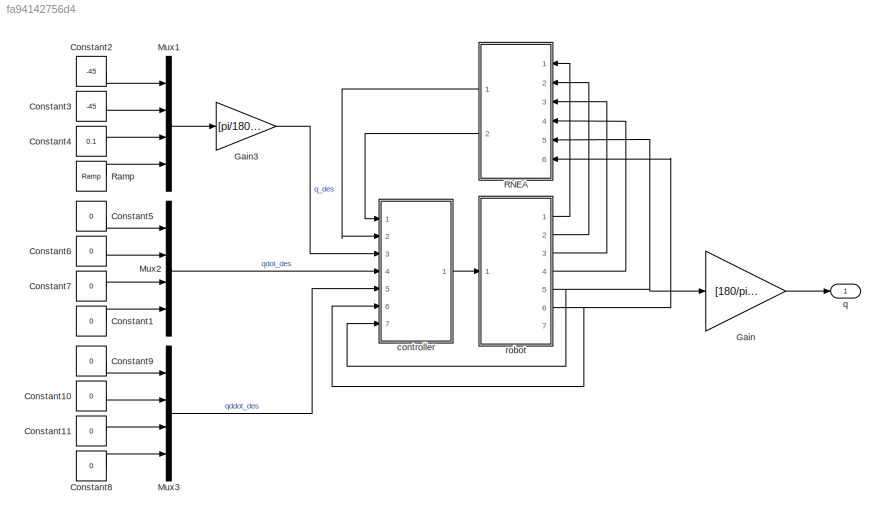
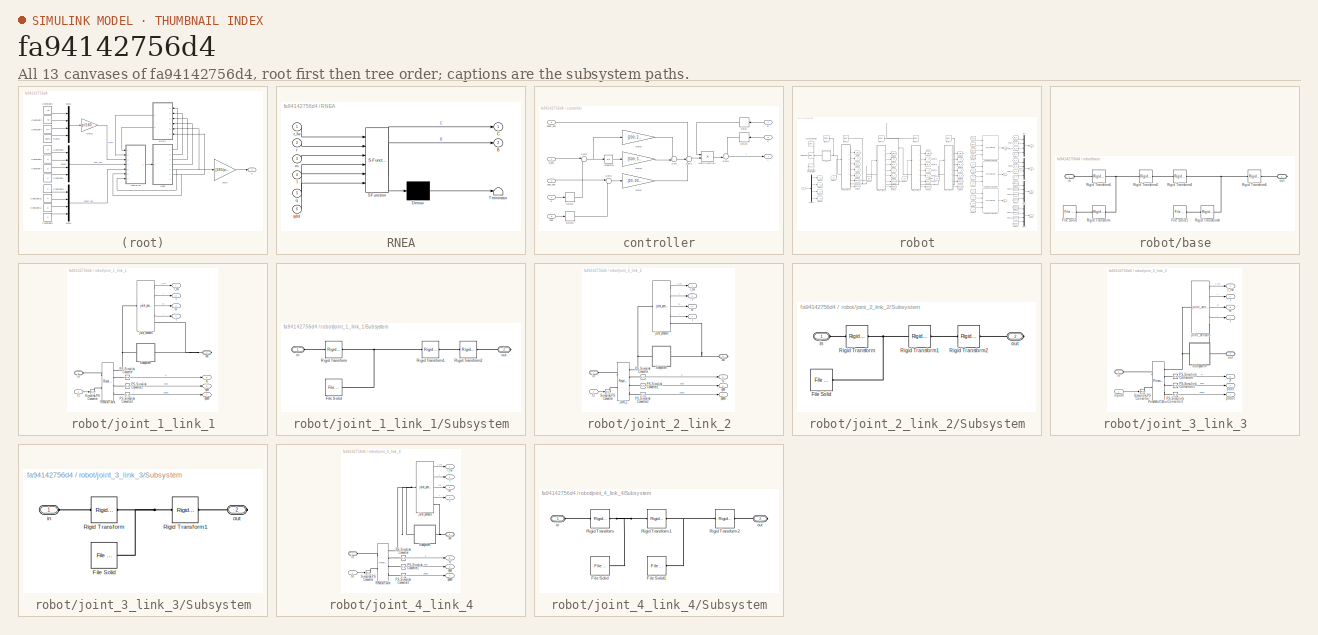
[diagram: thumbnail index - all 13 canvases of the model, root first then tree order]
MODEL slx_fa94142756d4
KIND model
CONFIG AbsTol = 1e-3
CONFIG EnableMultiTasking = on
CONFIG FixedStep = auto
CONFIG InitFcn = parameters;
CONFIG MaxStep = 0.01
CONFIG MinStep = auto
CONFIG RelTol = 1e-3
CONFIG SampleTimeConstraint = Unconstrained
CONFIG SolverName = VariableStepAuto
CONFIG StartTime = 0.0
CONFIG StopTime = 10.0
BLOCK [Constant] Constant1
  Value = 0
BLOCK [Constant] Constant10
  Value = 0
BLOCK [Constant] Constant11
  Value = 0
BLOCK [Constant] Constant2
  Value = -45
BLOCK [Constant] Constant3
  Value = -45
BLOCK [Constant] Constant4
  Value = 0.1
BLOCK [Constant] Constant5
  Value = 0
BLOCK [Constant] Constant6
  Value = 0
BLOCK [Constant] Constant7
  Value = 0
BLOCK [Constant] Constant8
  Value = 0
BLOCK [Constant] Constant9
  Value = 0
BLOCK [Gain] Gain
  Gain = [180/pi; 180/pi; 1; 180/pi]
BLOCK [Gain] Gain3
  Gain = [pi/180; pi/180; 1; pi/180]
BLOCK [Mux] Mux1
  DisplayOption = bar
  Ports = [4, 1]
BLOCK [Mux] Mux2
  DisplayOption = bar
  Ports = [4, 1]
BLOCK [Mux] Mux3
  DisplayOption = bar
  Ports = [4, 1]
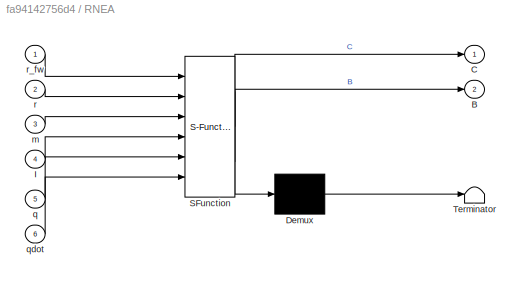
BLOCK [SubSystem] RNEA
  ErrorFcn = Stateflow.Translate.translate
  PermitHierarchicalResolution = ExplicitOnly
  Ports = [6, 2]
  RequestExecContextInheritance = off
  SFBlockType = MATLAB Function
  TreatAsAtomicUnit = on
BLOCK [Demux] RNEA/ Demux 
  Outputs = 1
  Ports = [1, 1]
BLOCK [S-Function] RNEA/ SFunction 
  EnableBusSupport = on
  FunctionName = sf_sfun
  Parameters = g
  PortCounts = [6 3]
  Ports = [6, 3]
  SFcnIsStateOwnerBlock = off
  SFunctionDeploymentMode = off
  Tag = Stateflow S-Function 1
BLOCK [Terminator] RNEA/ Terminator 
BLOCK [Outport] RNEA/B
  Port = 2
BLOCK [Outport] RNEA/C
BLOCK [Inport] RNEA/I
  Port = 4
BLOCK [Inport] RNEA/m
  Port = 3
BLOCK [Inport] RNEA/q
  Port = 5
BLOCK [Inport] RNEA/qdot
  Port = 6
BLOCK [Inport] RNEA/r
  Port = 2
BLOCK [Inport] RNEA/r_fw
BLOCK [Reference] Ramp  REF=simulink/Sources/Ramp
  Ports = [0, 1]
  SourceBlock = simulink/Sources/Ramp
  SourceProductBaseCode = SL
  SourceType = Ramp
BLOCK [SubSystem] controller
  Ports = [7, 1]
  RequestExecContextInheritance = off
BLOCK [Inport] controller/B
BLOCK [Inport] controller/C
  Port = 2
BLOCK [Delay] controller/Delay
  DelayLength = 1
  InputPortMap = u0
  NameLocation = top
  Ports = [1, 1]
BLOCK [Delay] controller/Delay1
  DelayLength = 1
  InputPortMap = u0
  NameLocation = top
  Ports = [1, 1]
BLOCK [Delay] controller/Delay2
  DelayLength = 1
  InputPortMap = u0
  Ports = [1, 1]
BLOCK [Delay] controller/Delay3
  DelayLength = 1
  InputPortMap = u0
  Ports = [1, 1]
BLOCK [Gain] controller/Gain2
  Gain = [200; 200; 200; 200]
BLOCK [Gain] controller/Gain3
  Gain = [500; 500; 500; 500]
BLOCK [Gain] controller/Gain4
  Gain = [20; 20; 20; 20]
BLOCK [Integrator] controller/Integrator
  Ports = [1, 1]
BLOCK [Product] controller/Matrix Multiply
  Inputs = **
  Multiplication = Matrix(*)
  Ports = [2, 1]
BLOCK [Sum] controller/Sum
  Inputs = ++|
  Ports = [2, 1]
BLOCK [Sum] controller/Sum1
  Inputs = +++
  Ports = [3, 1]
BLOCK [Sum] controller/Sum2
  Inputs = |+-
  Ports = [2, 1]
BLOCK [Sum] controller/Sum3
  Inputs = |+-
  Ports = [2, 1]
BLOCK [Sum] controller/Sum4
  Inputs = ++|
  Ports = [2, 1]
BLOCK [Inport] controller/q
  Port = 7
BLOCK [Inport] controller/q_des
  Port = 3
BLOCK [Inport] controller/qddot_des
  Port = 5
BLOCK [Inport] controller/qdot
  Port = 6
BLOCK [Inport] controller/qdot_des
  Port = 4
BLOCK [Outport] controller/t
BLOCK [Outport] q
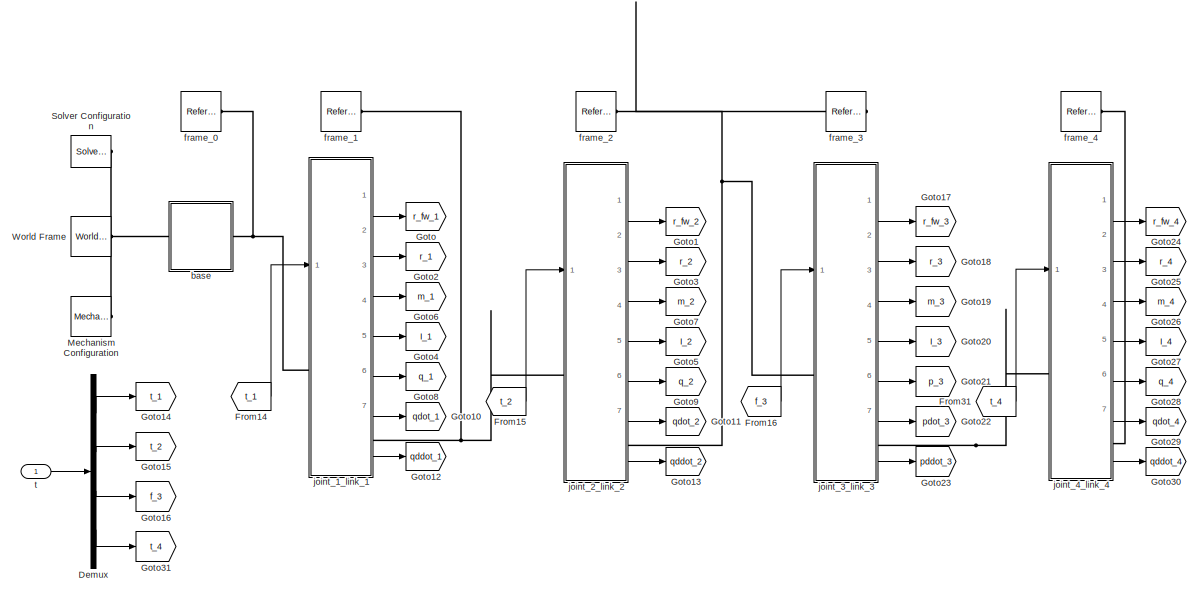
[diagram: robot - part 1/2, center side, full height]
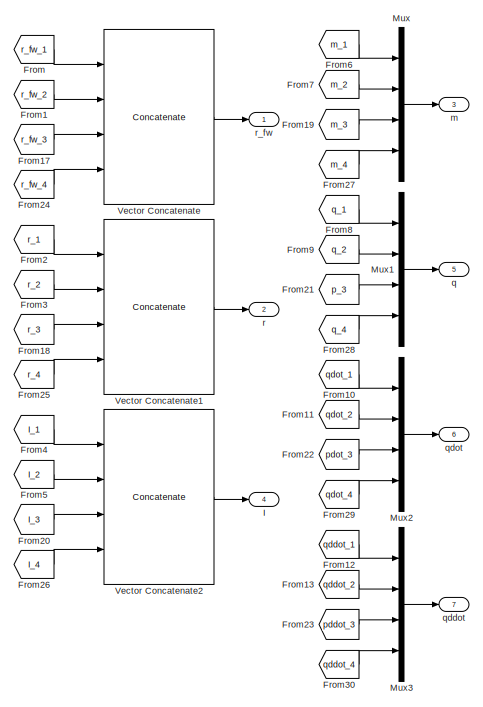
[diagram: robot - part 2/2, right side, full height]
BLOCK [SubSystem] robot
  Ports = [1, 7]
  RequestExecContextInheritance = off
BLOCK [Demux] robot/Demux
  Ports = [1, 4]
BLOCK [From] robot/From
  GotoTag = r_fw_1
BLOCK [From] robot/From1
  GotoTag = r_fw_2
BLOCK [From] robot/From10
  GotoTag = qdot_1
BLOCK [From] robot/From11
  GotoTag = qdot_2
BLOCK [From] robot/From12
  GotoTag = qddot_1
BLOCK [From] robot/From13
  GotoTag = qddot_2
BLOCK [From] robot/From14
  GotoTag = t_1
BLOCK [From] robot/From15
  GotoTag = t_2
BLOCK [From] robot/From16
  GotoTag = f_3
BLOCK [From] robot/From17
  GotoTag = r_fw_3
BLOCK [From] robot/From18
  GotoTag = r_3
BLOCK [From] robot/From19
  GotoTag = m_3
BLOCK [From] robot/From2
  GotoTag = r_1
BLOCK [From] robot/From20
  GotoTag = I_3
BLOCK [From] robot/From21
  GotoTag = p_3
BLOCK [From] robot/From22
  GotoTag = pdot_3
BLOCK [From] robot/From23
  GotoTag = pddot_3
BLOCK [From] robot/From24
  GotoTag = r_fw_4
BLOCK [From] robot/From25
  GotoTag = r_4
BLOCK [From] robot/From26
  GotoTag = I_4
BLOCK [From] robot/From27
  GotoTag = m_4
BLOCK [From] robot/From28
  GotoTag = q_4
BLOCK [From] robot/From29
  GotoTag = qdot_4
BLOCK [From] robot/From3
  GotoTag = r_2
BLOCK [From] robot/From30
  GotoTag = qddot_4
BLOCK [From] robot/From31
  GotoTag = t_4
BLOCK [From] robot/From4
  GotoTag = I_1
BLOCK [From] robot/From5
  GotoTag = I_2
BLOCK [From] robot/From6
  GotoTag = m_1
BLOCK [From] robot/From7
  GotoTag = m_2
BLOCK [From] robot/From8
  GotoTag = q_1
BLOCK [From] robot/From9
  GotoTag = q_2
BLOCK [Goto] robot/Goto
  GotoTag = r_fw_1
BLOCK [Goto] robot/Goto1
  GotoTag = r_fw_2
BLOCK [Goto] robot/Goto10
  GotoTag = qdot_1
BLOCK [Goto] robot/Goto11
  GotoTag = qdot_2
BLOCK [Goto] robot/Goto12
  GotoTag = qddot_1
BLOCK [Goto] robot/Goto13
  GotoTag = qddot_2
BLOCK [Goto] robot/Goto14
  GotoTag = t_1
BLOCK [Goto] robot/Goto15
  GotoTag = t_2
BLOCK [Goto] robot/Goto16
  GotoTag = f_3
BLOCK [Goto] robot/Goto17
  GotoTag = r_fw_3
BLOCK [Goto] robot/Goto18
  GotoTag = r_3
BLOCK [Goto] robot/Goto19
  GotoTag = m_3
BLOCK [Goto] robot/Goto2
  GotoTag = r_1
BLOCK [Goto] robot/Goto20
  GotoTag = I_3
BLOCK [Goto] robot/Goto21
  GotoTag = p_3
BLOCK [Goto] robot/Goto22
  GotoTag = pdot_3
BLOCK [Goto] robot/Goto23
  GotoTag = pddot_3
BLOCK [Goto] robot/Goto24
  GotoTag = r_fw_4
BLOCK [Goto] robot/Goto25
  GotoTag = r_4
BLOCK [Goto] robot/Goto26
  GotoTag = m_4
BLOCK [Goto] robot/Goto27
  GotoTag = I_4
BLOCK [Goto] robot/Goto28
  GotoTag = q_4
BLOCK [Goto] robot/Goto29
  GotoTag = qdot_4
BLOCK [Goto] robot/Goto3
  GotoTag = r_2
BLOCK [Goto] robot/Goto30
  GotoTag = qddot_4
BLOCK [Goto] robot/Goto31
  GotoTag = t_4
BLOCK [Goto] robot/Goto4
  GotoTag = I_1
BLOCK [Goto] robot/Goto5
  GotoTag = I_2
BLOCK [Goto] robot/Goto6
  GotoTag = m_1
BLOCK [Goto] robot/Goto7
  GotoTag = m_2
BLOCK [Goto] robot/Goto8
  GotoTag = q_1
BLOCK [Goto] robot/Goto9
  GotoTag = q_2
BLOCK [Outport] robot/I
  Port = 4
BLOCK [Reference] robot/Mechanism Configuration  REF=sm_lib/Utilities/Mechanism
Configuration
  Ports = [0, 0, 0, 0, 0, 0, 1]
  SourceBlock = sm_lib/Utilities/Mechanism\nConfiguration
  SourceProductBaseCode = MS
  SourceType = Mechanism\nConfiguration
BLOCK [Mux] robot/Mux
  DisplayOption = bar
  Ports = [4, 1]
BLOCK [Mux] robot/Mux1
  DisplayOption = bar
  Ports = [4, 1]
BLOCK [Mux] robot/Mux2
  DisplayOption = bar
  Ports = [4, 1]
BLOCK [Mux] robot/Mux3
  DisplayOption = bar
  Ports = [4, 1]
BLOCK [Reference] robot/Solver Configuration  REF=nesl_utility/Solver
Configuration
  Ports = [0, 0, 0, 0, 0, 0, 1]
  SourceBlock = nesl_utility/Solver\nConfiguration
  SourceProductName = Utilities
  SourceType = Solver\nConfiguration
BLOCK [Concatenate] robot/Vector Concatenate
  ConcatenateDimension = 2
  Mode = Multidimensional array
  NumInputs = 4
  Ports = [4, 1]
BLOCK [Concatenate] robot/Vector Concatenate1
  ConcatenateDimension = 2
  Mode = Multidimensional array
  NumInputs = 4
  Ports = [4, 1]
BLOCK [Concatenate] robot/Vector Concatenate2
  Mode = Multidimensional array
  NumInputs = 4
  Ports = [4, 1]
BLOCK [Reference] robot/World Frame  REF=sm_lib/Frames and
Transforms/World Frame
  Ports = [0, 0, 0, 0, 0, 0, 1]
  SourceBlock = sm_lib/Frames and\nTransforms/World Frame
  SourceProductName = Multibody
  SourceType = World Frame
BLOCK [SubSystem] robot/base
  Ports = [0, 0, 0, 0, 0, 1, 1]
  RequestExecContextInheritance = off
BLOCK [Reference] robot/base/File Solid  REF=sm_lib/Body Elements/File Solid
  Ports = [0, 0, 0, 0, 0, 0, 1]
  SourceBlock = sm_lib/Body Elements/File Solid
  SourceProductBaseCode = MS
  SourceType = File Solid
BLOCK [Reference] robot/base/File Solid1  REF=sm_lib/Body Elements/File Solid
  Ports = [0, 0, 0, 0, 0, 0, 1]
  SourceBlock = sm_lib/Body Elements/File Solid
  SourceProductBaseCode = MS
  SourceType = File Solid
BLOCK [Reference] robot/base/Rigid Transform  REF=sm_lib/Frames and
Transforms/Rigid
Transform
  Ports = [0, 0, 0, 0, 0, 1, 1]
  SourceBlock = sm_lib/Frames and\nTransforms/Rigid\nTransform
  SourceProductBaseCode = MS
  SourceType = Rigid\nTransform
BLOCK [Reference] robot/base/Rigid Transform1  REF=sm_lib/Frames and
Transforms/Rigid
Transform
  Ports = [0, 0, 0, 0, 0, 1, 1]
  SourceBlock = sm_lib/Frames and\nTransforms/Rigid\nTransform
  SourceProductBaseCode = MS
  SourceType = Rigid\nTransform
BLOCK [Reference] robot/base/Rigid Transform2  REF=sm_lib/Frames and
Transforms/Rigid
Transform
  Ports = [0, 0, 0, 0, 0, 1, 1]
  SourceBlock = sm_lib/Frames and\nTransforms/Rigid\nTransform
  SourceProductBaseCode = MS
  SourceType = Rigid\nTransform
BLOCK [Reference] robot/base/Rigid Transform3  REF=sm_lib/Frames and
Transforms/Rigid
Transform
  Ports = [0, 0, 0, 0, 0, 1, 1]
  SourceBlock = sm_lib/Frames and\nTransforms/Rigid\nTransform
  SourceProductBaseCode = MS
  SourceType = Rigid\nTransform
BLOCK [Reference] robot/base/Rigid Transform4  REF=sm_lib/Frames and
Transforms/Rigid
Transform
  Ports = [0, 0, 0, 0, 0, 1, 1]
  SourceBlock = sm_lib/Frames and\nTransforms/Rigid\nTransform
  SourceProductBaseCode = MS
  SourceType = Rigid\nTransform
BLOCK [Reference] robot/base/Rigid Transform5  REF=sm_lib/Frames and
Transforms/Rigid
Transform
  Ports = [0, 0, 0, 0, 0, 1, 1]
  SourceBlock = sm_lib/Frames and\nTransforms/Rigid\nTransform
  SourceProductBaseCode = MS
  SourceType = Rigid\nTransform
BLOCK [PMIOPort] robot/base/in
  Side = Left
BLOCK [PMIOPort] robot/base/out
  Port = 2
  Side = Right
BLOCK [Reference] robot/frame_0  REF=sm_lib/Frames and
Transforms/Reference
Frame
  Ports = [0, 0, 0, 0, 0, 0, 1]
  SourceBlock = sm_lib/Frames and\nTransforms/Reference\nFrame
  SourceProductBaseCode = MS
  SourceType = Reference\nFrame
BLOCK [Reference] robot/frame_1  REF=sm_lib/Frames and
Transforms/Reference
Frame
  Ports = [0, 0, 0, 0, 0, 0, 1]
  SourceBlock = sm_lib/Frames and\nTransforms/Reference\nFrame
  SourceProductBaseCode = MS
  SourceType = Reference\nFrame
BLOCK [Reference] robot/frame_2  REF=sm_lib/Frames and
Transforms/Reference
Frame
  Ports = [0, 0, 0, 0, 0, 0, 1]
  SourceBlock = sm_lib/Frames and\nTransforms/Reference\nFrame
  SourceProductBaseCode = MS
  SourceType = Reference\nFrame
BLOCK [Reference] robot/frame_3  REF=sm_lib/Frames and
Transforms/Reference
Frame
  Ports = [0, 0, 0, 0, 0, 0, 1]
  SourceBlock = sm_lib/Frames and\nTransforms/Reference\nFrame
  SourceProductBaseCode = MS
  SourceType = Reference\nFrame
BLOCK [Reference] robot/frame_4  REF=sm_lib/Frames and
Transforms/Reference
Frame
  Ports = [0, 0, 0, 0, 0, 0, 1]
  SourceBlock = sm_lib/Frames and\nTransforms/Reference\nFrame
  SourceProductBaseCode = MS
  SourceType = Reference\nFrame
BLOCK [SubSystem] robot/joint_1_link_1
  PortSchema = {"entries":[{"content":{"sides":[{"content":{"connectorIds":["LConn1","In1"]},"type":"ConnectorPlacement.EquallySpacedRectSide","uuid":"eb1af6ed-9b87-46b9-8d3f-34ba78cb806b"},{"content":{"connectorIds":["RConn1","Out1","Out2","Out3","Out4","Out5","Out6","Out7"],"side":"RIGHT"},"type":"ConnectorPlacement.EquallySpacedRectSide","uuid":"1ba58fe6-d6b2-465a-832c-57fc388ac006"},{"content":{"connectorIds...<+444ch>
  Ports = [1, 7, 0, 0, 0, 1, 1]
  RequestExecContextInheritance = off
BLOCK [Outport] robot/joint_1_link_1/I
  Port = 4
BLOCK [Reference] robot/joint_1_link_1/PS-Simulink Converter  REF=nesl_utility/PS-Simulink
Converter
  Ports = [0, 1, 0, 0, 0, 1]
  SourceBlock = nesl_utility/PS-Simulink\nConverter
  SourceProductBaseCode = SS
  SourceType = PS-Simulink\nConverter
BLOCK [Reference] robot/joint_1_link_1/PS-Simulink Converter1  REF=nesl_utility/PS-Simulink
Converter
  Ports = [0, 1, 0, 0, 0, 1]
  SourceBlock = nesl_utility/PS-Simulink\nConverter
  SourceProductBaseCode = SS
  SourceType = PS-Simulink\nConverter
BLOCK [Reference] robot/joint_1_link_1/PS-Simulink Converter2  REF=nesl_utility/PS-Simulink
Converter
  Ports = [0, 1, 0, 0, 0, 1]
  SourceBlock = nesl_utility/PS-Simulink\nConverter
  SourceProductBaseCode = SS
  SourceType = PS-Simulink\nConverter
BLOCK [Reference] robot/joint_1_link_1/Revolute Joint  REF=sm_lib/Joints/Revolute Joint
  Ports = [0, 0, 0, 0, 0, 2, 4]
  SourceBlock = sm_lib/Joints/Revolute Joint
  SourceProductBaseCode = MS
  SourceType = Revolute Joint
BLOCK [Reference] robot/joint_1_link_1/Simulink-PS Converter  REF=nesl_utility/Simulink-PS
Converter
  Ports = [1, 0, 0, 0, 0, 0, 1]
  SourceBlock = nesl_utility/Simulink-PS\nConverter
  SourceProductBaseCode = SS
  SourceType = Simulink-PS\nConverter
BLOCK [SubSystem] robot/joint_1_link_1/Subsystem
  Ports = [0, 0, 0, 0, 0, 1, 1]
  RequestExecContextInheritance = off
BLOCK [Reference] robot/joint_1_link_1/Subsystem/File Solid  REF=sm_lib/Body Elements/File Solid
  Ports = [0, 0, 0, 0, 0, 0, 1]
  SourceBlock = sm_lib/Body Elements/File Solid
  SourceProductBaseCode = MS
  SourceType = File Solid
BLOCK [Reference] robot/joint_1_link_1/Subsystem/Rigid Transform  REF=sm_lib/Frames and
Transforms/Rigid
Transform
  Ports = [0, 0, 0, 0, 0, 1, 1]
  SourceBlock = sm_lib/Frames and\nTransforms/Rigid\nTransform
  SourceProductBaseCode = MS
  SourceType = Rigid\nTransform
BLOCK [Reference] robot/joint_1_link_1/Subsystem/Rigid Transform1  REF=sm_lib/Frames and
Transforms/Rigid
Transform
  Ports = [0, 0, 0, 0, 0, 1, 1]
  SourceBlock = sm_lib/Frames and\nTransforms/Rigid\nTransform
  SourceProductBaseCode = MS
  SourceType = Rigid\nTransform
BLOCK [Reference] robot/joint_1_link_1/Subsystem/Rigid Transform2  REF=sm_lib/Frames and
Transforms/Rigid
Transform
  Ports = [0, 0, 0, 0, 0, 1, 1]
  SourceBlock = sm_lib/Frames and\nTransforms/Rigid\nTransform
  SourceProductBaseCode = MS
  SourceType = Rigid\nTransform
BLOCK [PMIOPort] robot/joint_1_link_1/Subsystem/in
  Side = Left
BLOCK [PMIOPort] robot/joint_1_link_1/Subsystem/out
  Port = 2
  Side = Right
BLOCK [PMIOPort] robot/joint_1_link_1/in
  Side = Left
BLOCK [Reference] robot/joint_1_link_1/joint_sensors  REF=robot_arms_library/joint_sensors  (lib defined in slx_32957a7d959d)
  Ports = [0, 4, 0, 0, 0, 1, 1]
  SourceBlock = robot_arms_library/joint_sensors
BLOCK [Outport] robot/joint_1_link_1/m
  Port = 3
BLOCK [PMIOPort] robot/joint_1_link_1/out
  Port = 2
  Side = Right
BLOCK [Outport] robot/joint_1_link_1/q
  Port = 5
BLOCK [Outport] robot/joint_1_link_1/qddot
  Port = 7
BLOCK [Outport] robot/joint_1_link_1/qdot
  Port = 6
BLOCK [Outport] robot/joint_1_link_1/r
  Port = 2
BLOCK [Outport] robot/joint_1_link_1/r_fw
BLOCK [Inport] robot/joint_1_link_1/t1
BLOCK [SubSystem] robot/joint_2_link_2
  PortSchema = {"entries":[{"content":{"sides":[{"content":{"connectorIds":["LConn1","In1"]},"type":"ConnectorPlacement.EquallySpacedRectSide","uuid":"eb1af6ed-9b87-46b9-8d3f-34ba78cb806b"},{"content":{"connectorIds":["RConn1","Out1","Out2","Out3","Out4","Out5","Out6","Out7"],"side":"RIGHT"},"type":"ConnectorPlacement.EquallySpacedRectSide","uuid":"1ba58fe6-d6b2-465a-832c-57fc388ac006"},{"content":{"connectorIds...<+444ch>
  Ports = [1, 7, 0, 0, 0, 1, 1]
  RequestExecContextInheritance = off
BLOCK [Outport] robot/joint_2_link_2/I
  Port = 4
BLOCK [Reference] robot/joint_2_link_2/PS-Simulink Converter  REF=nesl_utility/PS-Simulink
Converter
  Ports = [0, 1, 0, 0, 0, 1]
  SourceBlock = nesl_utility/PS-Simulink\nConverter
  SourceProductBaseCode = SS
  SourceType = PS-Simulink\nConverter
BLOCK [Reference] robot/joint_2_link_2/PS-Simulink Converter1  REF=nesl_utility/PS-Simulink
Converter
  Ports = [0, 1, 0, 0, 0, 1]
  SourceBlock = nesl_utility/PS-Simulink\nConverter
  SourceProductBaseCode = SS
  SourceType = PS-Simulink\nConverter
BLOCK [Reference] robot/joint_2_link_2/PS-Simulink Converter2  REF=nesl_utility/PS-Simulink
Converter
  Ports = [0, 1, 0, 0, 0, 1]
  SourceBlock = nesl_utility/PS-Simulink\nConverter
  SourceProductBaseCode = SS
  SourceType = PS-Simulink\nConverter
BLOCK [Reference] robot/joint_2_link_2/Simulink-PS Converter  REF=nesl_utility/Simulink-PS
Converter
  Ports = [1, 0, 0, 0, 0, 0, 1]
  SourceBlock = nesl_utility/Simulink-PS\nConverter
  SourceProductBaseCode = SS
  SourceType = Simulink-PS\nConverter
BLOCK [SubSystem] robot/joint_2_link_2/Subsystem
  Ports = [0, 0, 0, 0, 0, 1, 1]
  RequestExecContextInheritance = off
BLOCK [Reference] robot/joint_2_link_2/Subsystem/File Solid  REF=sm_lib/Body Elements/File Solid
  Ports = [0, 0, 0, 0, 0, 0, 1]
  SourceBlock = sm_lib/Body Elements/File Solid
  SourceProductBaseCode = MS
  SourceType = File Solid
BLOCK [Reference] robot/joint_2_link_2/Subsystem/Rigid Transform  REF=sm_lib/Frames and
Transforms/Rigid
Transform
  Ports = [0, 0, 0, 0, 0, 1, 1]
  SourceBlock = sm_lib/Frames and\nTransforms/Rigid\nTransform
  SourceProductBaseCode = MS
  SourceType = Rigid\nTransform
BLOCK [Reference] robot/joint_2_link_2/Subsystem/Rigid Transform1  REF=sm_lib/Frames and
Transforms/Rigid
Transform
  Ports = [0, 0, 0, 0, 0, 1, 1]
  SourceBlock = sm_lib/Frames and\nTransforms/Rigid\nTransform
  SourceProductBaseCode = MS
  SourceType = Rigid\nTransform
BLOCK [Reference] robot/joint_2_link_2/Subsystem/Rigid Transform2  REF=sm_lib/Frames and
Transforms/Rigid
Transform
  Ports = [0, 0, 0, 0, 0, 1, 1]
  SourceBlock = sm_lib/Frames and\nTransforms/Rigid\nTransform
  SourceProductBaseCode = MS
  SourceType = Rigid\nTransform
BLOCK [PMIOPort] robot/joint_2_link_2/Subsystem/in
  Side = Left
BLOCK [PMIOPort] robot/joint_2_link_2/Subsystem/out
  Port = 2
  Side = Right
BLOCK [PMIOPort] robot/joint_2_link_2/in
  Side = Left
BLOCK [Reference] robot/joint_2_link_2/joint_2  REF=sm_lib/Joints/Revolute Joint
  Ports = [0, 0, 0, 0, 0, 2, 4]
  SourceBlock = sm_lib/Joints/Revolute Joint
  SourceProductBaseCode = MS
  SourceType = Revolute Joint
BLOCK [Reference] robot/joint_2_link_2/joint_sensors  REF=robot_arms_library/joint_sensors  (lib defined in slx_32957a7d959d)
  Ports = [0, 4, 0, 0, 0, 1, 1]
  SourceBlock = robot_arms_library/joint_sensors
BLOCK [Outport] robot/joint_2_link_2/m
  Port = 3
BLOCK [PMIOPort] robot/joint_2_link_2/out
  Port = 2
  Side = Right
BLOCK [Outport] robot/joint_2_link_2/q
  Port = 5
BLOCK [Outport] robot/joint_2_link_2/qddot
  Port = 7
BLOCK [Outport] robot/joint_2_link_2/qdot
  Port = 6
BLOCK [Outport] robot/joint_2_link_2/r
  Port = 2
BLOCK [Outport] robot/joint_2_link_2/r_fw
BLOCK [Inport] robot/joint_2_link_2/t2
BLOCK [SubSystem] robot/joint_3_link_3
  PortSchema = {"entries":[{"content":{"sides":[{"content":{"connectorIds":["LConn1","In1"]},"type":"ConnectorPlacement.EquallySpacedRectSide","uuid":"4da2bac3-9e46-40a4-b3d7-f3a1908a531a"},{"content":{"connectorIds":["RConn1","Out1","Out2","Out3","Out4","Out5","Out6","Out7"],"side":"RIGHT"},"type":"ConnectorPlacement.EquallySpacedRectSide","uuid":"d3f45e8b-aafa-452a-8f78-b53538b5243f"},{"content":{"connectorIds...<+444ch>
  Ports = [1, 7, 0, 0, 0, 1, 1]
  RequestExecContextInheritance = off
BLOCK [Outport] robot/joint_3_link_3/I
  Port = 4
BLOCK [Reference] robot/joint_3_link_3/PS-Simulink Converter  REF=nesl_utility/PS-Simulink
Converter
  Ports = [0, 1, 0, 0, 0, 1]
  SourceBlock = nesl_utility/PS-Simulink\nConverter
  SourceProductBaseCode = SS
  SourceType = PS-Simulink\nConverter
BLOCK [Reference] robot/joint_3_link_3/PS-Simulink Converter1  REF=nesl_utility/PS-Simulink
Converter
  Ports = [0, 1, 0, 0, 0, 1]
  SourceBlock = nesl_utility/PS-Simulink\nConverter
  SourceProductBaseCode = SS
  SourceType = PS-Simulink\nConverter
BLOCK [Reference] robot/joint_3_link_3/PS-Simulink Converter2  REF=nesl_utility/PS-Simulink
Converter
  Ports = [0, 1, 0, 0, 0, 1]
  SourceBlock = nesl_utility/PS-Simulink\nConverter
  SourceProductBaseCode = SS
  SourceType = PS-Simulink\nConverter
BLOCK [Reference] robot/joint_3_link_3/Prismatic Joint  REF=sm_lib/Joints/Prismatic
Joint
  Ports = [0, 0, 0, 0, 0, 2, 4]
  SourceBlock = sm_lib/Joints/Prismatic\nJoint
  SourceProductBaseCode = MS
  SourceType = Prismatic\nJoint
BLOCK [Reference] robot/joint_3_link_3/Simulink-PS Converter  REF=nesl_utility/Simulink-PS
Converter
  Ports = [1, 0, 0, 0, 0, 0, 1]
  SourceBlock = nesl_utility/Simulink-PS\nConverter
  SourceProductBaseCode = SS
  SourceType = Simulink-PS\nConverter
BLOCK [SubSystem] robot/joint_3_link_3/Subsystem
  Ports = [0, 0, 0, 0, 0, 1, 1]
  RequestExecContextInheritance = off
BLOCK [Reference] robot/joint_3_link_3/Subsystem/File Solid  REF=sm_lib/Body Elements/File Solid
  Ports = [0, 0, 0, 0, 0, 0, 1]
  SourceBlock = sm_lib/Body Elements/File Solid
  SourceProductBaseCode = MS
  SourceType = File Solid
BLOCK [Reference] robot/joint_3_link_3/Subsystem/Rigid Transform  REF=sm_lib/Frames and
Transforms/Rigid
Transform
  Ports = [0, 0, 0, 0, 0, 1, 1]
  SourceBlock = sm_lib/Frames and\nTransforms/Rigid\nTransform
  SourceProductBaseCode = MS
  SourceType = Rigid\nTransform
BLOCK [Reference] robot/joint_3_link_3/Subsystem/Rigid Transform1  REF=sm_lib/Frames and
Transforms/Rigid
Transform
  Ports = [0, 0, 0, 0, 0, 1, 1]
  SourceBlock = sm_lib/Frames and\nTransforms/Rigid\nTransform
  SourceProductBaseCode = MS
  SourceType = Rigid\nTransform
BLOCK [PMIOPort] robot/joint_3_link_3/Subsystem/in
  Side = Left
BLOCK [PMIOPort] robot/joint_3_link_3/Subsystem/out
  Port = 2
  Side = Right
BLOCK [PMIOPort] robot/joint_3_link_3/in
  Side = Left
BLOCK [Inport] robot/joint_3_link_3/input0
BLOCK [Reference] robot/joint_3_link_3/joint_sensors  REF=robot_arms_library/joint_sensors  (lib defined in slx_32957a7d959d)
  Ports = [0, 4, 0, 0, 0, 1, 1]
  SourceBlock = robot_arms_library/joint_sensors
BLOCK [Outport] robot/joint_3_link_3/m
  Port = 3
BLOCK [PMIOPort] robot/joint_3_link_3/out
  Port = 2
  Side = Right
BLOCK [Outport] robot/joint_3_link_3/p
  NameLocation = right
  Port = 5
BLOCK [Outport] robot/joint_3_link_3/pddot
  NameLocation = right
  Port = 7
BLOCK [Outport] robot/joint_3_link_3/pdot
  NameLocation = right
  Port = 6
BLOCK [Outport] robot/joint_3_link_3/r
  Port = 2
BLOCK [Outport] robot/joint_3_link_3/r_fw
BLOCK [SubSystem] robot/joint_4_link_4
  PortSchema = {"entries":[{"content":{"sides":[{"content":{"connectorIds":["LConn1","In1"]},"type":"ConnectorPlacement.EquallySpacedRectSide","uuid":"043b3c25-56e3-4c3d-a558-7bb9590c7dcd"},{"content":{"connectorIds":["RConn1","Out1","Out2","Out3","Out4","Out5","Out6","Out7"],"side":"RIGHT"},"type":"ConnectorPlacement.EquallySpacedRectSide","uuid":"22b1b426-362c-4339-959c-b1242d37f7ca"},{"content":{"connectorIds...<+444ch>
  Ports = [1, 7, 0, 0, 0, 1, 1]
  RequestExecContextInheritance = off
BLOCK [Outport] robot/joint_4_link_4/I
  Port = 4
BLOCK [Reference] robot/joint_4_link_4/PS-Simulink Converter  REF=nesl_utility/PS-Simulink
Converter
  Ports = [0, 1, 0, 0, 0, 1]
  SourceBlock = nesl_utility/PS-Simulink\nConverter
  SourceProductBaseCode = SS
  SourceType = PS-Simulink\nConverter
BLOCK [Reference] robot/joint_4_link_4/PS-Simulink Converter1  REF=nesl_utility/PS-Simulink
Converter
  Ports = [0, 1, 0, 0, 0, 1]
  SourceBlock = nesl_utility/PS-Simulink\nConverter
  SourceProductBaseCode = SS
  SourceType = PS-Simulink\nConverter
BLOCK [Reference] robot/joint_4_link_4/PS-Simulink Converter2  REF=nesl_utility/PS-Simulink
Converter
  Ports = [0, 1, 0, 0, 0, 1]
  SourceBlock = nesl_utility/PS-Simulink\nConverter
  SourceProductBaseCode = SS
  SourceType = PS-Simulink\nConverter
BLOCK [Reference] robot/joint_4_link_4/Revolute Joint  REF=sm_lib/Joints/Revolute Joint
  Ports = [0, 0, 0, 0, 0, 2, 4]
  SourceBlock = sm_lib/Joints/Revolute Joint
  SourceProductBaseCode = MS
  SourceType = Revolute Joint
BLOCK [Reference] robot/joint_4_link_4/Simulink-PS Converter  REF=nesl_utility/Simulink-PS
Converter
  Ports = [1, 0, 0, 0, 0, 0, 1]
  SourceBlock = nesl_utility/Simulink-PS\nConverter
  SourceProductBaseCode = SS
  SourceType = Simulink-PS\nConverter
BLOCK [SubSystem] robot/joint_4_link_4/Subsystem
  Ports = [0, 0, 0, 0, 0, 1, 1]
  RequestExecContextInheritance = off
BLOCK [Reference] robot/joint_4_link_4/Subsystem/File Solid  REF=sm_lib/Body Elements/File Solid
  Ports = [0, 0, 0, 0, 0, 0, 1]
  SourceBlock = sm_lib/Body Elements/File Solid
  SourceProductBaseCode = MS
  SourceType = File Solid
BLOCK [Reference] robot/joint_4_link_4/Subsystem/File Solid1  REF=sm_lib/Body Elements/File Solid
  Ports = [0, 0, 0, 0, 0, 0, 1]
  SourceBlock = sm_lib/Body Elements/File Solid
  SourceProductBaseCode = MS
  SourceType = File Solid
BLOCK [Reference] robot/joint_4_link_4/Subsystem/Rigid Transform  REF=sm_lib/Frames and
Transforms/Rigid
Transform
  Ports = [0, 0, 0, 0, 0, 1, 1]
  SourceBlock = sm_lib/Frames and\nTransforms/Rigid\nTransform
  SourceProductBaseCode = MS
  SourceType = Rigid\nTransform
BLOCK [Reference] robot/joint_4_link_4/Subsystem/Rigid Transform1  REF=sm_lib/Frames and
Transforms/Rigid
Transform
  Ports = [0, 0, 0, 0, 0, 1, 1]
  SourceBlock = sm_lib/Frames and\nTransforms/Rigid\nTransform
  SourceProductBaseCode = MS
  SourceType = Rigid\nTransform
BLOCK [Reference] robot/joint_4_link_4/Subsystem/Rigid Transform2  REF=sm_lib/Frames and
Transforms/Rigid
Transform
  Ports = [0, 0, 0, 0, 0, 1, 1]
  SourceBlock = sm_lib/Frames and\nTransforms/Rigid\nTransform
  SourceProductBaseCode = MS
  SourceType = Rigid\nTransform
BLOCK [PMIOPort] robot/joint_4_link_4/Subsystem/in
  Side = Left
BLOCK [PMIOPort] robot/joint_4_link_4/Subsystem/out
  Port = 2
  Side = Right
BLOCK [PMIOPort] robot/joint_4_link_4/in
  Side = Left
BLOCK [Reference] robot/joint_4_link_4/joint_sensors  REF=robot_arms_library/joint_sensors  (lib defined in slx_32957a7d959d)
  Ports = [0, 4, 0, 0, 0, 1, 1]
  SourceBlock = robot_arms_library/joint_sensors
BLOCK [Outport] robot/joint_4_link_4/m
  Port = 3
BLOCK [PMIOPort] robot/joint_4_link_4/out
  NameLocation = top
  Port = 2
  Side = Right
BLOCK [Outport] robot/joint_4_link_4/q
  Port = 5
BLOCK [Outport] robot/joint_4_link_4/qddot
  Port = 7
BLOCK [Outport] robot/joint_4_link_4/qdot
  Port = 6
BLOCK [Outport] robot/joint_4_link_4/r
  Port = 2
BLOCK [Outport] robot/joint_4_link_4/r_fw
BLOCK [Inport] robot/joint_4_link_4/t4
BLOCK [Outport] robot/m
  Port = 3
BLOCK [Outport] robot/q
  Port = 5
BLOCK [Outport] robot/qddot
  Port = 7
BLOCK [Outport] robot/qdot
  Port = 6
BLOCK [Outport] robot/r
  Port = 2
BLOCK [Outport] robot/r_fw
BLOCK [Inport] robot/t
LINE Constant10:1 -> Mux3:2
LINE Constant11:1 -> Mux3:3
LINE Constant1:1 -> Mux2:4
LINE Constant2:1 -> Mux1:1
LINE Constant3:1 -> Mux1:2
LINE Constant4:1 -> Mux1:3
LINE Constant5:1 -> Mux2:1
LINE Constant6:1 -> Mux2:2
LINE Constant7:1 -> Mux2:3
LINE Constant8:1 -> Mux3:4
LINE Constant9:1 -> Mux3:1
LINE Gain3:1 -> controller:3
LINE Gain:1 -> q:1
LINE Mux1:1 -> Gain3:1
LINE Mux2:1 -> controller:4
LINE Mux3:1 -> controller:5
LINE RNEA:1 -> controller:2
LINE RNEA:2 -> controller:1
LINE Ramp:1 -> Mux1:4
LINE controller/B:1 -> controller/Delay:1
LINE controller/C:1 -> controller/Delay1:1
LINE controller/Delay1:1 -> controller/Sum4:1
LINE controller/Delay2:1 -> controller/Sum3:2
LINE controller/Delay3:1 -> controller/Sum2:2
LINE controller/Delay:1 -> controller/Matrix Multiply:1
LINE controller/Gain2:1 -> controller/Sum:1
LINE controller/Gain3:1 -> controller/Sum:2
LINE controller/Gain4:1 -> controller/Sum1:3
LINE controller/Integrator:1 -> controller/Gain3:1
LINE controller/Matrix Multiply:1 -> controller/Sum4:2
LINE controller/Sum1:1 -> controller/Matrix Multiply:2
LINE controller/Sum2:1 -> controller/Gain4:1
NET controller/Sum3:1 -> controller/Gain2:1, controller/Integrator:1
LINE controller/Sum4:1 -> controller/t:1
LINE controller/Sum:1 -> controller/Sum1:2
LINE controller/q:1 -> controller/Delay2:1
LINE controller/q_des:1 -> controller/Sum3:1
LINE controller/qddot_des:1 -> controller/Sum1:1
LINE controller/qdot:1 -> controller/Delay3:1
LINE controller/qdot_des:1 -> controller/Sum2:1
LINE controller:1 -> robot:1
LINE robot/Demux:1 -> robot/Goto14:1
LINE robot/Demux:2 -> robot/Goto15:1
LINE robot/Demux:3 -> robot/Goto16:1
LINE robot/Demux:4 -> robot/Goto31:1
LINE robot/From10:1 -> robot/Mux2:1
LINE robot/From11:1 -> robot/Mux2:2
LINE robot/From12:1 -> robot/Mux3:1
LINE robot/From13:1 -> robot/Mux3:2
LINE robot/From14:1 -> robot/joint_1_link_1:1
LINE robot/From15:1 -> robot/joint_2_link_2:1
LINE robot/From16:1 -> robot/joint_3_link_3:1
LINE robot/From17:1 -> robot/Vector Concatenate:3
LINE robot/From18:1 -> robot/Vector Concatenate1:3
LINE robot/From19:1 -> robot/Mux:3
LINE robot/From1:1 -> robot/Vector Concatenate:2
LINE robot/From20:1 -> robot/Vector Concatenate2:3
LINE robot/From21:1 -> robot/Mux1:3
LINE robot/From22:1 -> robot/Mux2:3
LINE robot/From23:1 -> robot/Mux3:3
LINE robot/From24:1 -> robot/Vector Concatenate:4
LINE robot/From25:1 -> robot/Vector Concatenate1:4
LINE robot/From26:1 -> robot/Vector Concatenate2:4
LINE robot/From27:1 -> robot/Mux:4
LINE robot/From28:1 -> robot/Mux1:4
LINE robot/From29:1 -> robot/Mux2:4
LINE robot/From2:1 -> robot/Vector Concatenate1:1
LINE robot/From30:1 -> robot/Mux3:4
LINE robot/From31:1 -> robot/joint_4_link_4:1
LINE robot/From3:1 -> robot/Vector Concatenate1:2
LINE robot/From4:1 -> robot/Vector Concatenate2:1
LINE robot/From5:1 -> robot/Vector Concatenate2:2
LINE robot/From6:1 -> robot/Mux:1
LINE robot/From7:1 -> robot/Mux:2
LINE robot/From8:1 -> robot/Mux1:1
LINE robot/From9:1 -> robot/Mux1:2
LINE robot/From:1 -> robot/Vector Concatenate:1
LINE robot/Mux1:1 -> robot/q:1
LINE robot/Mux2:1 -> robot/qdot:1
LINE robot/Mux3:1 -> robot/qddot:1
LINE robot/Mux:1 -> robot/m:1
LINE robot/Vector Concatenate1:1 -> robot/r:1
LINE robot/Vector Concatenate2:1 -> robot/I:1
LINE robot/Vector Concatenate:1 -> robot/r_fw:1
LINE robot/joint_1_link_1/PS-Simulink Converter1:1 -> robot/joint_1_link_1/qdot:1
LINE robot/joint_1_link_1/PS-Simulink Converter2:1 -> robot/joint_1_link_1/qddot:1
LINE robot/joint_1_link_1/PS-Simulink Converter:1 -> robot/joint_1_link_1/q:1
LINE robot/joint_1_link_1/joint_sensors:1 -> robot/joint_1_link_1/r_fw:1
LINE robot/joint_1_link_1/joint_sensors:2 -> robot/joint_1_link_1/r:1
LINE robot/joint_1_link_1/joint_sensors:3 -> robot/joint_1_link_1/m:1
LINE robot/joint_1_link_1/joint_sensors:4 -> robot/joint_1_link_1/I:1
LINE robot/joint_1_link_1/t1:1 -> robot/joint_1_link_1/Simulink-PS Converter:1
LINE robot/joint_1_link_1:1 -> robot/Goto:1
LINE robot/joint_1_link_1:2 -> robot/Goto2:1
LINE robot/joint_1_link_1:3 -> robot/Goto6:1
LINE robot/joint_1_link_1:4 -> robot/Goto4:1
LINE robot/joint_1_link_1:5 -> robot/Goto8:1
LINE robot/joint_1_link_1:6 -> robot/Goto10:1
LINE robot/joint_1_link_1:7 -> robot/Goto12:1
LINE robot/joint_2_link_2/PS-Simulink Converter1:1 -> robot/joint_2_link_2/qdot:1
LINE robot/joint_2_link_2/PS-Simulink Converter2:1 -> robot/joint_2_link_2/qddot:1
LINE robot/joint_2_link_2/PS-Simulink Converter:1 -> robot/joint_2_link_2/q:1
LINE robot/joint_2_link_2/joint_sensors:1 -> robot/joint_2_link_2/r_fw:1
LINE robot/joint_2_link_2/joint_sensors:2 -> robot/joint_2_link_2/r:1
LINE robot/joint_2_link_2/joint_sensors:3 -> robot/joint_2_link_2/m:1
LINE robot/joint_2_link_2/joint_sensors:4 -> robot/joint_2_link_2/I:1
LINE robot/joint_2_link_2/t2:1 -> robot/joint_2_link_2/Simulink-PS Converter:1
LINE robot/joint_2_link_2:1 -> robot/Goto1:1
LINE robot/joint_2_link_2:2 -> robot/Goto3:1
LINE robot/joint_2_link_2:3 -> robot/Goto7:1
LINE robot/joint_2_link_2:4 -> robot/Goto5:1
LINE robot/joint_2_link_2:5 -> robot/Goto9:1
LINE robot/joint_2_link_2:6 -> robot/Goto11:1
LINE robot/joint_2_link_2:7 -> robot/Goto13:1
LINE robot/joint_3_link_3/PS-Simulink Converter1:1 -> robot/joint_3_link_3/pdot:1
LINE robot/joint_3_link_3/PS-Simulink Converter2:1 -> robot/joint_3_link_3/pddot:1
LINE robot/joint_3_link_3/PS-Simulink Converter:1 -> robot/joint_3_link_3/p:1
LINE robot/joint_3_link_3/input0:1 -> robot/joint_3_link_3/Simulink-PS Converter:1
LINE robot/joint_3_link_3/joint_sensors:1 -> robot/joint_3_link_3/r_fw:1
LINE robot/joint_3_link_3/joint_sensors:2 -> robot/joint_3_link_3/r:1
LINE robot/joint_3_link_3/joint_sensors:3 -> robot/joint_3_link_3/m:1
LINE robot/joint_3_link_3/joint_sensors:4 -> robot/joint_3_link_3/I:1
LINE robot/joint_3_link_3:1 -> robot/Goto17:1
LINE robot/joint_3_link_3:2 -> robot/Goto18:1
LINE robot/joint_3_link_3:3 -> robot/Goto19:1
LINE robot/joint_3_link_3:4 -> robot/Goto20:1
LINE robot/joint_3_link_3:5 -> robot/Goto21:1
LINE robot/joint_3_link_3:6 -> robot/Goto22:1
LINE robot/joint_3_link_3:7 -> robot/Goto23:1
LINE robot/joint_4_link_4/PS-Simulink Converter1:1 -> robot/joint_4_link_4/qdot:1
LINE robot/joint_4_link_4/PS-Simulink Converter2:1 -> robot/joint_4_link_4/qddot:1
LINE robot/joint_4_link_4/PS-Simulink Converter:1 -> robot/joint_4_link_4/q:1
LINE robot/joint_4_link_4/joint_sensors:1 -> robot/joint_4_link_4/r_fw:1
LINE robot/joint_4_link_4/joint_sensors:2 -> robot/joint_4_link_4/r:1
LINE robot/joint_4_link_4/joint_sensors:3 -> robot/joint_4_link_4/m:1
LINE robot/joint_4_link_4/joint_sensors:4 -> robot/joint_4_link_4/I:1
LINE robot/joint_4_link_4/t4:1 -> robot/joint_4_link_4/Simulink-PS Converter:1
LINE robot/joint_4_link_4:1 -> robot/Goto24:1
LINE robot/joint_4_link_4:2 -> robot/Goto25:1
LINE robot/joint_4_link_4:3 -> robot/Goto26:1
LINE robot/joint_4_link_4:4 -> robot/Goto27:1
LINE robot/joint_4_link_4:5 -> robot/Goto28:1
LINE robot/joint_4_link_4:6 -> robot/Goto29:1
LINE robot/joint_4_link_4:7 -> robot/Goto30:1
LINE robot/t:1 -> robot/Demux:1
LINE robot:1 -> RNEA:1
LINE robot:2 -> RNEA:2
LINE robot:3 -> RNEA:3
LINE robot:4 -> RNEA:4
NET robot:5 -> Gain:1, RNEA:5, controller:7
NET robot:6 -> RNEA:6, controller:6
PNET net1: robot/Mechanism Configuration:RConn1 -- robot/Solver Configuration:RConn1 -- robot/World Frame:RConn1 -- robot/base:LConn1
PLINE robot/base/File Solid1:RConn1 -- robot/base/Rigid Transform4:LConn1
PLINE robot/base/File Solid:RConn1 -- robot/base/Rigid Transform:LConn1
PLINE robot/base/Rigid Transform1:LConn1 -- robot/base/in:RConn1
PNET net2: robot/base/Rigid Transform1:RConn1 -- robot/base/Rigid Transform2:LConn1 -- robot/base/Rigid Transform:RConn1
PLINE robot/base/Rigid Transform2:RConn1 -- robot/base/Rigid Transform3:LConn1
PNET net3: robot/base/Rigid Transform3:RConn1 -- robot/base/Rigid Transform4:RConn1 -- robot/base/Rigid Transform5:LConn1
PLINE robot/base/Rigid Transform5:RConn1 -- robot/base/out:RConn1
PNET net4: robot/base:RConn1 -- robot/frame_0:RConn1 -- robot/joint_1_link_1:LConn1
PNET net5: robot/frame_1:RConn1 -- robot/joint_1_link_1:RConn1 -- robot/joint_2_link_2:LConn1
PNET net6: robot/frame_2:RConn1 -- robot/joint_2_link_2:RConn1 -- robot/joint_3_link_3:LConn1
PNET net7: robot/frame_3:RConn1 -- robot/joint_3_link_3:RConn1 -- robot/joint_4_link_4:LConn1
PLINE robot/frame_4:RConn1 -- robot/joint_4_link_4:RConn1
PLINE robot/joint_1_link_1/PS-Simulink Converter1:LConn1 -- robot/joint_1_link_1/Revolute Joint:RConn3
PLINE robot/joint_1_link_1/PS-Simulink Converter2:LConn1 -- robot/joint_1_link_1/Revolute Joint:RConn4
PLINE robot/joint_1_link_1/PS-Simulink Converter:LConn1 -- robot/joint_1_link_1/Revolute Joint:RConn2
PLINE robot/joint_1_link_1/Revolute Joint:LConn1 -- robot/joint_1_link_1/in:RConn1
PLINE robot/joint_1_link_1/Revolute Joint:LConn2 -- robot/joint_1_link_1/Simulink-PS Converter:RConn1
PNET net8: robot/joint_1_link_1/Revolute Joint:RConn1 -- robot/joint_1_link_1/Subsystem:LConn1 -- robot/joint_1_link_1/joint_sensors:LConn1
PNET net9: robot/joint_1_link_1/Subsystem/File Solid:RConn1 -- robot/joint_1_link_1/Subsystem/Rigid Transform1:LConn1 -- robot/joint_1_link_1/Subsystem/Rigid Transform:RConn1
PLINE robot/joint_1_link_1/Subsystem/Rigid Transform1:RConn1 -- robot/joint_1_link_1/Subsystem/Rigid Transform2:LConn1
PLINE robot/joint_1_link_1/Subsystem/Rigid Transform2:RConn1 -- robot/joint_1_link_1/Subsystem/out:RConn1
PLINE robot/joint_1_link_1/Subsystem/Rigid Transform:LConn1 -- robot/joint_1_link_1/Subsystem/in:RConn1
PNET net10: robot/joint_1_link_1/Subsystem:RConn1 -- robot/joint_1_link_1/joint_sensors:RConn1 -- robot/joint_1_link_1/out:RConn1
PLINE robot/joint_2_link_2/PS-Simulink Converter1:LConn1 -- robot/joint_2_link_2/joint_2:RConn3
PLINE robot/joint_2_link_2/PS-Simulink Converter2:LConn1 -- robot/joint_2_link_2/joint_2:RConn4
PLINE robot/joint_2_link_2/PS-Simulink Converter:LConn1 -- robot/joint_2_link_2/joint_2:RConn2
PLINE robot/joint_2_link_2/Simulink-PS Converter:RConn1 -- robot/joint_2_link_2/joint_2:LConn2
PNET net11: robot/joint_2_link_2/Subsystem/File Solid:RConn1 -- robot/joint_2_link_2/Subsystem/Rigid Transform1:LConn1 -- robot/joint_2_link_2/Subsystem/Rigid Transform:RConn1
PLINE robot/joint_2_link_2/Subsystem/Rigid Transform1:RConn1 -- robot/joint_2_link_2/Subsystem/Rigid Transform2:LConn1
PLINE robot/joint_2_link_2/Subsystem/Rigid Transform2:RConn1 -- robot/joint_2_link_2/Subsystem/out:RConn1
PLINE robot/joint_2_link_2/Subsystem/Rigid Transform:LConn1 -- robot/joint_2_link_2/Subsystem/in:RConn1
PNET net12: robot/joint_2_link_2/Subsystem:LConn1 -- robot/joint_2_link_2/joint_2:RConn1 -- robot/joint_2_link_2/joint_sensors:LConn1
PNET net13: robot/joint_2_link_2/Subsystem:RConn1 -- robot/joint_2_link_2/joint_sensors:RConn1 -- robot/joint_2_link_2/out:RConn1
PLINE robot/joint_2_link_2/in:RConn1 -- robot/joint_2_link_2/joint_2:LConn1
PLINE robot/joint_3_link_3/PS-Simulink Converter1:LConn1 -- robot/joint_3_link_3/Prismatic Joint:RConn3
PLINE robot/joint_3_link_3/PS-Simulink Converter2:LConn1 -- robot/joint_3_link_3/Prismatic Joint:RConn4
PLINE robot/joint_3_link_3/PS-Simulink Converter:LConn1 -- robot/joint_3_link_3/Prismatic Joint:RConn2
PLINE robot/joint_3_link_3/Prismatic Joint:LConn1 -- robot/joint_3_link_3/in:RConn1
PLINE robot/joint_3_link_3/Prismatic Joint:LConn2 -- robot/joint_3_link_3/Simulink-PS Converter:RConn1
PNET net14: robot/joint_3_link_3/Prismatic Joint:RConn1 -- robot/joint_3_link_3/Subsystem:LConn1 -- robot/joint_3_link_3/joint_sensors:LConn1
PNET net15: robot/joint_3_link_3/Subsystem/File Solid:RConn1 -- robot/joint_3_link_3/Subsystem/Rigid Transform1:LConn1 -- robot/joint_3_link_3/Subsystem/Rigid Transform:RConn1
PLINE robot/joint_3_link_3/Subsystem/Rigid Transform1:RConn1 -- robot/joint_3_link_3/Subsystem/out:RConn1
PLINE robot/joint_3_link_3/Subsystem/Rigid Transform:LConn1 -- robot/joint_3_link_3/Subsystem/in:RConn1
PNET net16: robot/joint_3_link_3/Subsystem:RConn1 -- robot/joint_3_link_3/joint_sensors:RConn1 -- robot/joint_3_link_3/out:RConn1
PLINE robot/joint_4_link_4/PS-Simulink Converter1:LConn1 -- robot/joint_4_link_4/Revolute Joint:RConn3
PLINE robot/joint_4_link_4/PS-Simulink Converter2:LConn1 -- robot/joint_4_link_4/Revolute Joint:RConn4
PLINE robot/joint_4_link_4/PS-Simulink Converter:LConn1 -- robot/joint_4_link_4/Revolute Joint:RConn2
PLINE robot/joint_4_link_4/Revolute Joint:LConn1 -- robot/joint_4_link_4/in:RConn1
PLINE robot/joint_4_link_4/Revolute Joint:LConn2 -- robot/joint_4_link_4/Simulink-PS Converter:RConn1
PNET net17: robot/joint_4_link_4/Revolute Joint:RConn1 -- robot/joint_4_link_4/Subsystem:LConn1 -- robot/joint_4_link_4/joint_sensors:LConn1
PNET net18: robot/joint_4_link_4/Subsystem/File Solid1:RConn1 -- robot/joint_4_link_4/Subsystem/Rigid Transform1:RConn1 -- robot/joint_4_link_4/Subsystem/Rigid Transform2:LConn1
PNET net19: robot/joint_4_link_4/Subsystem/File Solid:RConn1 -- robot/joint_4_link_4/Subsystem/Rigid Transform1:LConn1 -- robot/joint_4_link_4/Subsystem/Rigid Transform:RConn1
PLINE robot/joint_4_link_4/Subsystem/Rigid Transform2:RConn1 -- robot/joint_4_link_4/Subsystem/out:RConn1
PLINE robot/joint_4_link_4/Subsystem/Rigid Transform:LConn1 -- robot/joint_4_link_4/Subsystem/in:RConn1
PNET net20: robot/joint_4_link_4/Subsystem:RConn1 -- robot/joint_4_link_4/joint_sensors:RConn1 -- robot/joint_4_link_4/out:RConn1
note: NET lines group one-source signal fan-out (src -> all destinations, sorted); 1:1 wires keep LINE; PNET lines group multi-terminal physical nets as a canonical sorted terminal list (undirected conserving connections); 2-terminal nets keep the pairwise PLINE form
CHART RNEA states=1 transitions=1
  STATE_LABEL 'eML_blk_kernel()'
  STATE_LABEL "SCRIPT:\nfunction [C, B] = fcn(r_fw, r, m, I, q, qdot, g)\nn = length(q);\nr_bw = r_fw;\npddot_init = [0; 0; g];\nalpha = deg2rad([0; 0; 0; 0]);\nkr = ones(n,1);\nzm = [zeros(2,n); ones(1,n)];\nIm = zeros(n,1);\njoint_type = ['r'; 'r'; 'p'; 'r'];\ns = RNEA(joint_type, q, alpha, r, r_bw, kr, zm, m, I, Im);\n[B, C] = s.dynamic_matrices(qdot, pddot_init);\nend"
CHART  states=0 transitions=0
